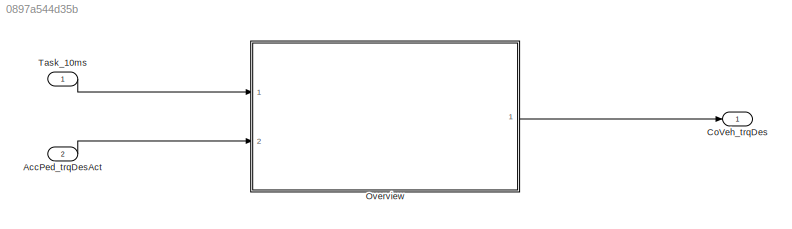
MODEL slx_0897a544d35b
KIND model
CONFIG AbsTol = auto
CONFIG EnableMultiTasking = off
CONFIG FixedStep = auto
CONFIG MaxStep = auto
CONFIG MinStep = auto
CONFIG RelTol = 1e-3
CONFIG SampleTimeConstraint = Unconstrained
CONFIG SolverName = VariableStepAuto
CONFIG StartTime = 0.0
CONFIG StopTime = 10.0
BLOCK [Inport] AccPed_trqDesAct
  Port = 2
BLOCK [Outport] CoVeh_trqDes
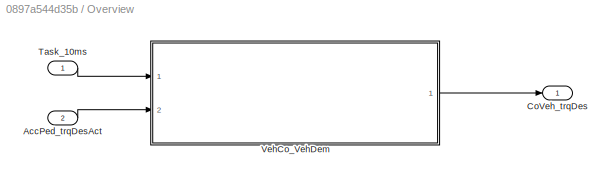
BLOCK [SubSystem] Overview
  Ports = [2, 1]
  RequestExecContextInheritance = off
BLOCK [Inport] Overview/AccPed_trqDesAct
  Port = 2
BLOCK [Outport] Overview/CoVeh_trqDes
  VectorParamsAs1DForOutWhenUnconnected = off
BLOCK [Inport] Overview/Task_10ms
BLOCK [ModelReference] Overview/VehCo_VehDem
  ModelNameDialog = VehCo_VehDem
  ModelReferenceVersion = 1.56
  Ports = [2, 1]
  ScheduleRates = on
BLOCK [Inport] Task_10ms
  OutputFunctionCall = on
LINE AccPed_trqDesAct:1 -> Overview:2
LINE Overview/AccPed_trqDesAct:1 -> Overview/VehCo_VehDem:2
LINE Overview/Task_10ms:1 -> Overview/VehCo_VehDem:1
LINE Overview/VehCo_VehDem:1 -> Overview/CoVeh_trqDes:1
LINE Overview:1 -> CoVeh_trqDes:1
LINE Task_10ms:1 -> Overview:1
